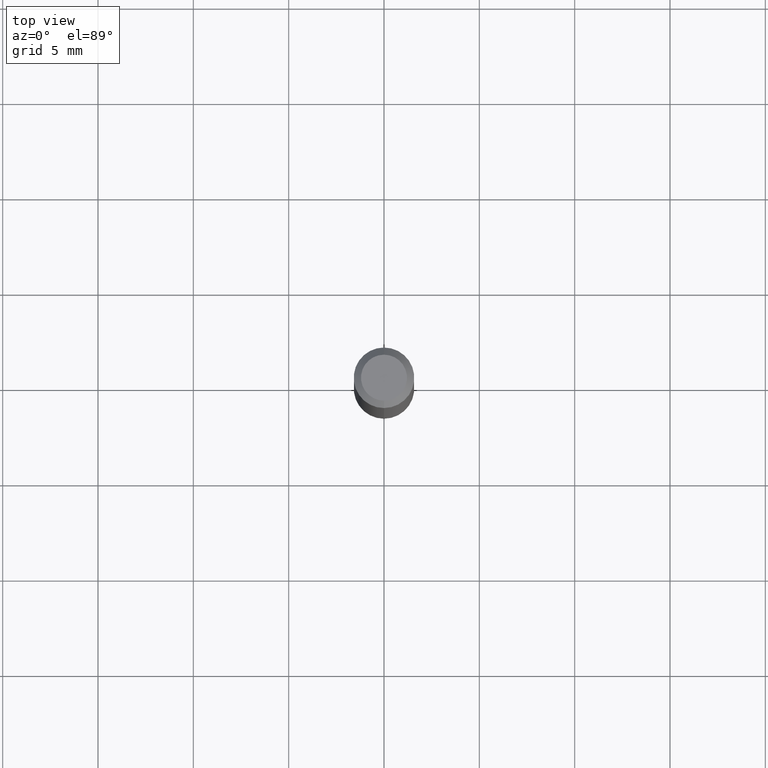
[diagram: clean part render]
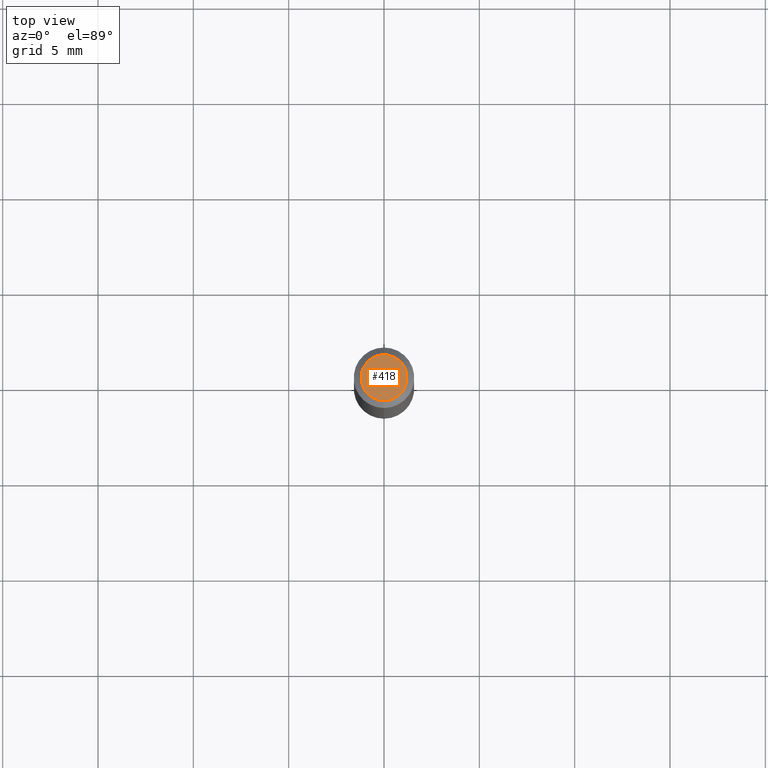
[diagram: same view with one face highlighted and labeled with its STEP entity id]
A machine part, top view. The second image highlights one B-rep face of the part: STEP entity #418.
In plain terms, the highlighted planar face has unit normal (0, -0, -1).
Its self-contained STEP definition (entity closure, byte-faithful):
#15 = CIRCLE ( 'NONE', #239, 0.04749999999999999362 ) ;
#32 = FACE_OUTER_BOUND ( 'NONE', #185, .T. ) ;
#43 = CARTESIAN_POINT ( 'NONE',  ( -3.773273898774340269E-16, -0.04749999999999999362, 1.003457974300915395E-16 ) ) ;
#67 = DIRECTION ( 'NONE',  ( -2.445463896887184035E-29, 3.491488369237233587E-15, 1.000000000000000000 ) ) ;
#139 = DIRECTION ( 'NONE',  ( -2.445463896887184035E-29, 3.491488369237233587E-15, 1.000000000000000000 ) ) ;
#153 = CARTESIAN_POINT ( 'NONE',  ( 3.316907271900976096E-16, 0.04749999999999999362, -1.985956475931071152E-16 ) ) ;
#181 = CARTESIAN_POINT ( 'NONE',  ( 1.601776409654866250E-45, -2.286921394156464237E-31, -6.549990010867702583E-17 ) ) ;
#185 = EDGE_LOOP ( 'NONE', ( #458, #423 ) ) ;
#188 = DIRECTION ( 'NONE',  ( 6.982962677686265922E-15, 1.000000000000000000, -3.491488369237233587E-15 ) ) ;
#194 = DIRECTION ( 'NONE',  ( 2.445463896887183755E-29, -3.491488369237233587E-15, -1.000000000000000000 ) ) ;
#229 = AXIS2_PLACEMENT_3D ( 'NONE', #452, #67, #405 ) ;
#233 = VERTEX_POINT ( 'NONE', #488 ) ;
#239 = AXIS2_PLACEMENT_3D ( 'NONE', #181, #139, #295 ) ;
#282 = AXIS2_PLACEMENT_3D ( 'NONE', #153, #194, #188 ) ;
#295 = DIRECTION ( 'NONE',  ( -6.982962677686266711E-15, -1.000000000000000000, 3.491488369237234376E-15 ) ) ;
#348 = CIRCLE ( 'NONE', #229, 0.04749999999999999362 ) ;
#405 = DIRECTION ( 'NONE',  ( -6.982962677686266711E-15, -1.000000000000000000, 3.491488369237234376E-15 ) ) ;
#418 = ADVANCED_FACE ( 'NONE', ( #32 ), #493, .F. ) ;
#423 = ORIENTED_EDGE ( 'NONE', *, *, #496, .T. ) ;
#452 = CARTESIAN_POINT ( 'NONE',  ( 1.601776409654866250E-45, -2.286921394156464237E-31, -6.549990010867702583E-17 ) ) ;
#458 = ORIENTED_EDGE ( 'NONE', *, *, #505, .T. ) ;
#488 = CARTESIAN_POINT ( 'NONE',  ( 3.840629472727447874E-16, 0.04749999999999999362, -2.313455976474456035E-16 ) ) ;
#493 = PLANE ( 'NONE',  #282 ) ;
#496 = EDGE_CURVE ( 'NONE', #506, #233, #15, .T. ) ;
#505 = EDGE_CURVE ( 'NONE', #233, #506, #348, .T. ) ;
#506 = VERTEX_POINT ( 'NONE', #43 ) ;